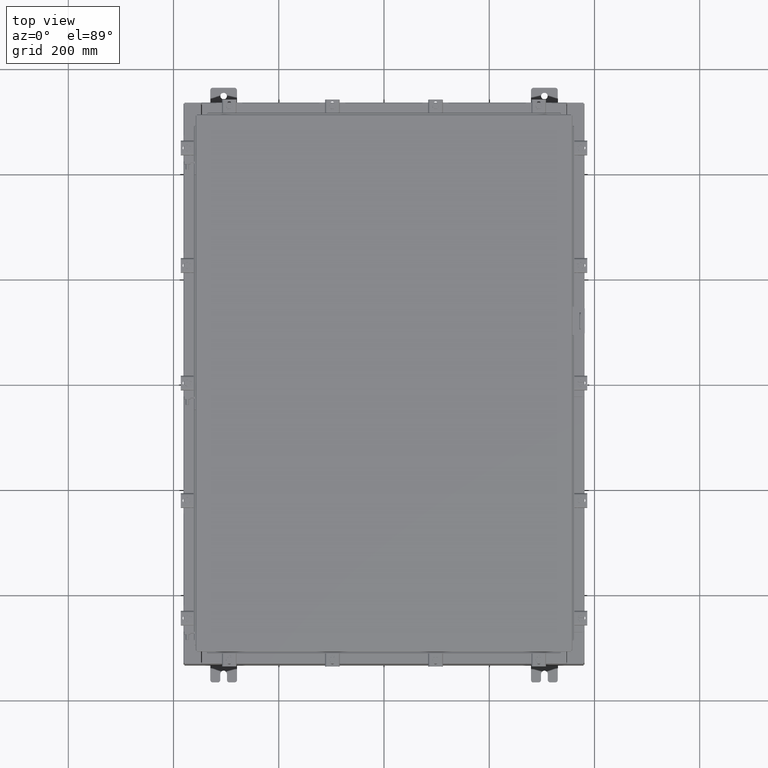
[diagram: clean part render]
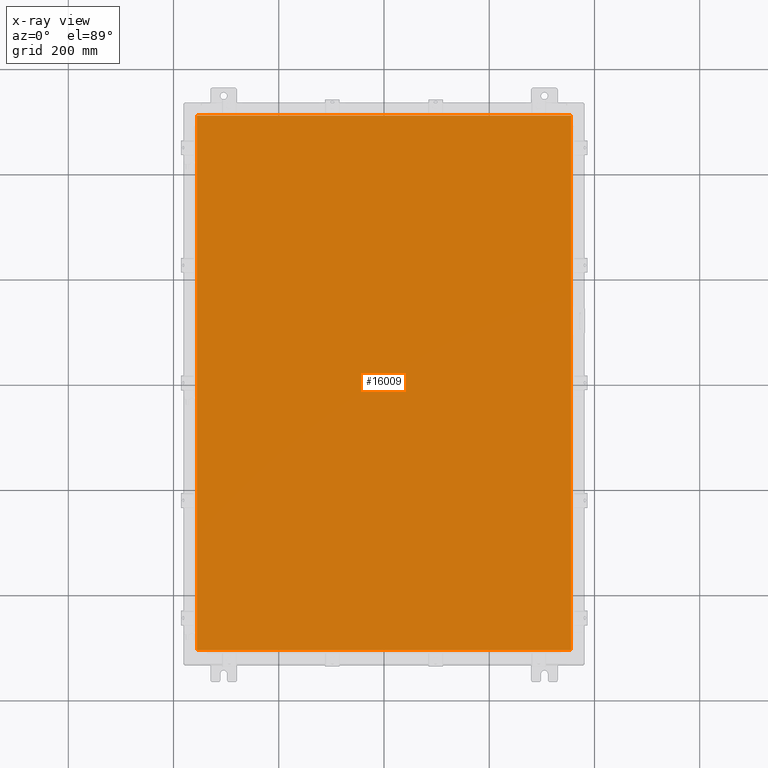
[diagram: x-ray — body ghosted, one internal face saturated and labeled with its STEP entity id]
A machine part, top view, then the same camera in x-ray: the body is ghosted and one INTERNAL B-rep face — a face not visible from any outside direction — is saturated and labeled: STEP entity #16009.
In plain terms, the highlighted planar face has unit normal (0, 0, -1).
Its self-contained STEP definition (entity closure, byte-faithful):
#977 = LINE ( 'NONE', #15981, #11049 ) ;
#1264 = CARTESIAN_POINT ( 'NONE',  ( -13.99029999999999800, -20.00630000000000700, -0.07470000000000000300 ) ) ;
#2020 = LINE ( 'NONE', #7730, #8213 ) ;
#3289 = LINE ( 'NONE', #18007, #7729 ) ;
#3764 = EDGE_CURVE ( 'NONE', #9207, #5032, #5155, .T. ) ;
#4627 = DIRECTION ( 'NONE',  ( -1.000000000000000000, -0.0000000000000000000, -0.0000000000000000000 ) ) ;
#4723 = DIRECTION ( 'NONE',  ( 1.000000000000000000, -0.0000000000000000000, -0.0000000000000000000 ) ) ;
#5032 = VERTEX_POINT ( 'NONE', #1264 ) ;
#5155 = LINE ( 'NONE', #6571, #9612 ) ;
#5675 = VERTEX_POINT ( 'NONE', #23581 ) ;
#6571 = CARTESIAN_POINT ( 'NONE',  ( -13.99029999999999800, 20.00630000000000300, -0.07470000000000019700 ) ) ;
#6608 = PLANE ( 'NONE',  #9142 ) ;
#6839 = VERTEX_POINT ( 'NONE', #17955 ) ;
#7275 = EDGE_CURVE ( 'NONE', #6839, #5675, #2020, .T. ) ;
#7729 = VECTOR ( 'NONE', #4723, 39.37007874015748100 ) ;
#7730 = CARTESIAN_POINT ( 'NONE',  ( 13.99030000000000000, -20.00630000000000300, -0.07470000000000129300 ) ) ;
#8213 = VECTOR ( 'NONE', #20970, 39.37007874015748100 ) ;
#8510 = DIRECTION ( 'NONE',  ( 0.0000000000000000000, 0.0000000000000000000, -1.000000000000000000 ) ) ;
#9142 = AXIS2_PLACEMENT_3D ( 'NONE', #17979, #8510, #21824 ) ;
#9207 = VERTEX_POINT ( 'NONE', #15903 ) ;
#9612 = VECTOR ( 'NONE', #17943, 39.37007874015748100 ) ;
#11049 = VECTOR ( 'NONE', #4627, 39.37007874015748100 ) ;
#11658 = ORIENTED_EDGE ( 'NONE', *, *, #12314, .F. ) ;
#11859 = EDGE_LOOP ( 'NONE', ( #23183, #22939, #21618, #11658 ) ) ;
#12314 = EDGE_CURVE ( 'NONE', #5675, #9207, #977, .T. ) ;
#15903 = CARTESIAN_POINT ( 'NONE',  ( -13.99029999999999800, 20.00630000000000300, -0.07470000000000000300 ) ) ;
#15981 = CARTESIAN_POINT ( 'NONE',  ( 13.99029999999999800, 20.00630000000000700, -0.07469999999999804600 ) ) ;
#16009 = ADVANCED_FACE ( 'NONE', ( #18268 ), #6608, .T. ) ;
#17943 = DIRECTION ( 'NONE',  ( 0.0000000000000000000, -1.000000000000000000, 0.0000000000000000000 ) ) ;
#17955 = CARTESIAN_POINT ( 'NONE',  ( 13.99030000000000000, -20.00630000000000300, -0.07470000000000000300 ) ) ;
#17979 = CARTESIAN_POINT ( 'NONE',  ( 0.0000000000000000000, 0.0000000000000000000, -0.07470000000000000300 ) ) ;
#18007 = CARTESIAN_POINT ( 'NONE',  ( -13.99029999999999600, -20.00630000000001000, -0.07470000000000234800 ) ) ;
#18268 = FACE_OUTER_BOUND ( 'NONE', #11859, .T. ) ;
#20970 = DIRECTION ( 'NONE',  ( 0.0000000000000000000, 1.000000000000000000, 0.0000000000000000000 ) ) ;
#21618 = ORIENTED_EDGE ( 'NONE', *, *, #3764, .F. ) ;
#21824 = DIRECTION ( 'NONE',  ( -1.000000000000000000, 0.0000000000000000000, -0.0000000000000000000 ) ) ;
#22065 = EDGE_CURVE ( 'NONE', #5032, #6839, #3289, .T. ) ;
#22939 = ORIENTED_EDGE ( 'NONE', *, *, #22065, .F. ) ;
#23183 = ORIENTED_EDGE ( 'NONE', *, *, #7275, .F. ) ;
#23581 = CARTESIAN_POINT ( 'NONE',  ( 13.99030000000000000, 20.00630000000000300, -0.07470000000000000300 ) ) ;